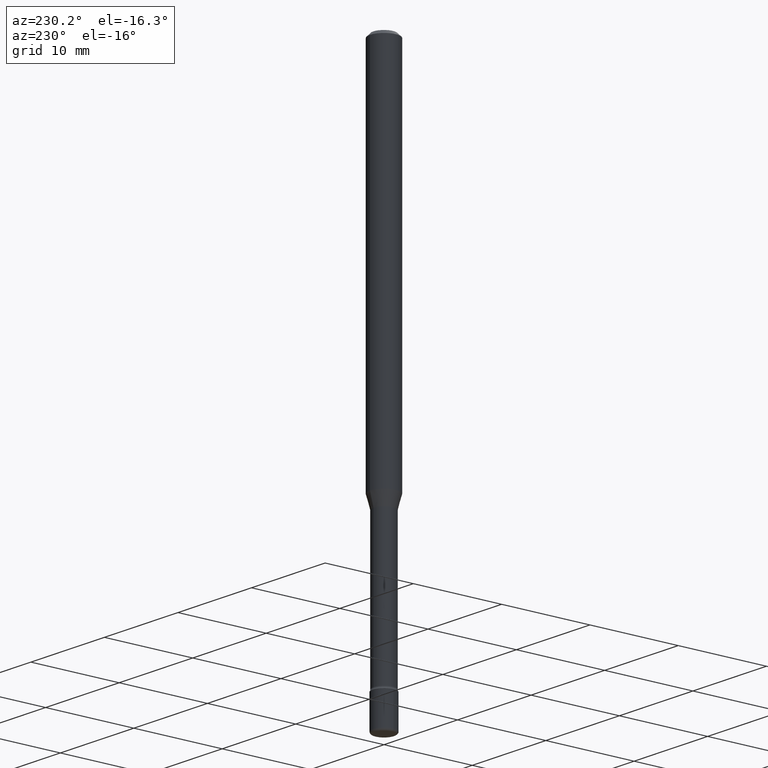
[diagram: clean part render]
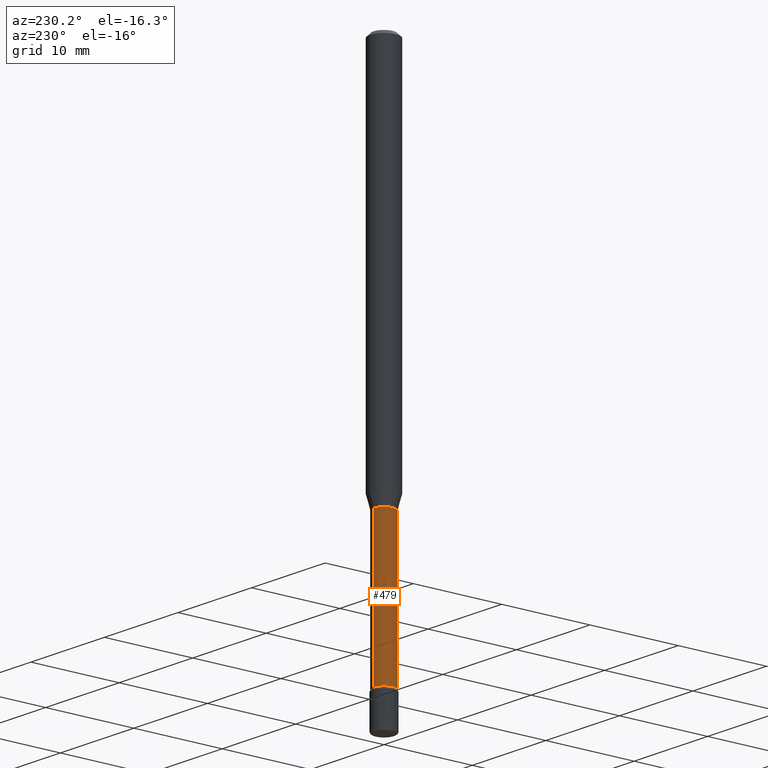
[diagram: same view with one face highlighted and labeled with its STEP entity id]
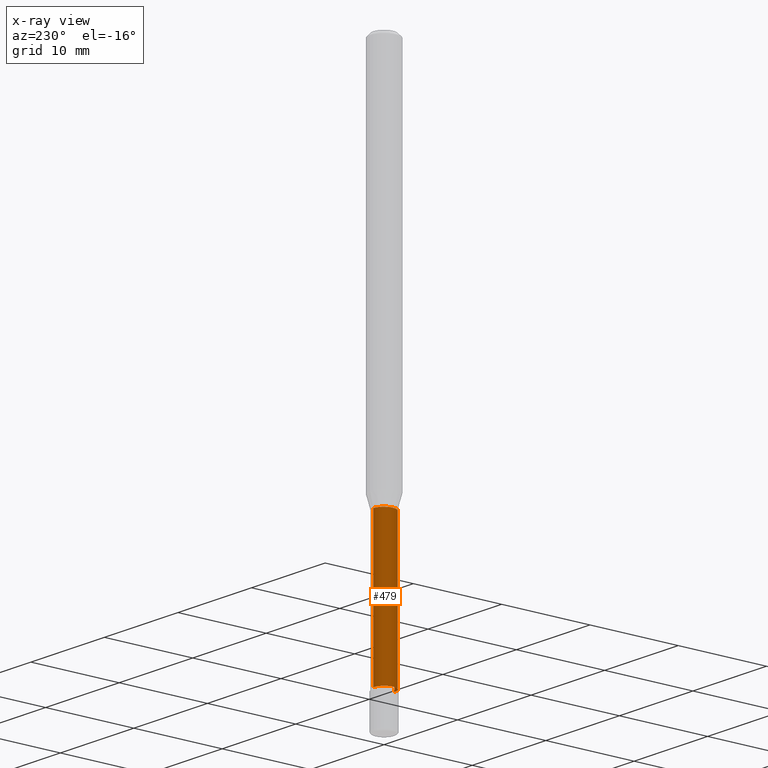
[diagram: x-ray of the same camera — body ghosted, the highlighted face saturated]
A machine part, auxiliary view. The second image highlights one B-rep face of the part: STEP entity #479.
The next image is the same camera in x-ray: the body ghosted, the highlighted face saturated — about 0% of this face is hidden behind the body in this view.
In plain terms, the highlighted cylindrical surface (edge-blend (fillet) strip) has radius 1.1938 mm, axis along (-0, 0, 1).
Its self-contained STEP definition (entity closure, byte-faithful):
#5 = AXIS2_PLACEMENT_3D ( 'NONE', #330, #46, #301 ) ;
#27 = CARTESIAN_POINT ( 'NONE',  ( -3.281992458512128914E-16, -0.04700000000000593980, -1.701974787463810701 ) ) ;
#31 = DIRECTION ( 'NONE',  ( -2.445484649858063983E-29, 3.491458649801747802E-15, 1.000000000000000000 ) ) ;
#35 = EDGE_CURVE ( 'NONE', #542, #219, #370, .T. ) ;
#46 = DIRECTION ( 'NONE',  ( -2.445484649858063703E-29, 3.491458649801748196E-15, 1.000000000000000000 ) ) ;
#67 = CARTESIAN_POINT ( 'NONE',  ( 4.162153217188190492E-29, -5.942374593435014667E-15, -1.701974787463810923 ) ) ;
#68 = CYLINDRICAL_SURFACE ( 'NONE', #5, 0.04700000000000000705 ) ;
#101 = EDGE_CURVE ( 'NONE', #219, #104, #326, .T. ) ;
#104 = VERTEX_POINT ( 'NONE', #27 ) ;
#130 = CARTESIAN_POINT ( 'NONE',  ( -3.281992458511972621E-16, -0.04700000000000817413, -2.340999999999999304 ) ) ;
#146 = VECTOR ( 'NONE', #486, 39.37007874015748143 ) ;
#196 = AXIS2_PLACEMENT_3D ( 'NONE', #377, #335, #455 ) ;
#219 = VERTEX_POINT ( 'NONE', #394 ) ;
#233 = VECTOR ( 'NONE', #31, 39.37007874015748143 ) ;
#301 = DIRECTION ( 'NONE',  ( -6.982962677686265922E-15, -1.000000000000000000, 3.491458649801746619E-15 ) ) ;
#316 = CARTESIAN_POINT ( 'NONE',  ( -3.281992458512545531E-16, -0.04700000000000000705, 6.421719554319281504E-16 ) ) ;
#321 = EDGE_CURVE ( 'NONE', #526, #104, #534, .T. ) ;
#326 = CIRCLE ( 'NONE', #560, 0.04699999999999999317 ) ;
#330 = CARTESIAN_POINT ( 'NONE',  ( -1.169113584055446105E-44, 1.669184350826100908E-30, 4.780733988912460139E-16 ) ) ;
#331 = CARTESIAN_POINT ( 'NONE',  ( 3.339550858072470388E-16, 0.04700000000000000705, 3.139748423505638775E-16 ) ) ;
#335 = DIRECTION ( 'NONE',  ( -2.445484649858063703E-29, 3.491458649801748196E-15, 1.000000000000000000 ) ) ;
#344 = EDGE_CURVE ( 'NONE', #542, #526, #498, .T. ) ;
#370 = LINE ( 'NONE', #331, #233 ) ;
#377 = CARTESIAN_POINT ( 'NONE',  ( 5.724879565317726717E-29, -8.173504699185892323E-15, -2.340999999999999748 ) ) ;
#385 = ORIENTED_EDGE ( 'NONE', *, *, #344, .T. ) ;
#389 = ORIENTED_EDGE ( 'NONE', *, *, #321, .T. ) ;
#394 = CARTESIAN_POINT ( 'NONE',  ( 3.339550858073043792E-16, 0.04699999999999405348, -1.701974787463811145 ) ) ;
#412 = DIRECTION ( 'NONE',  ( -2.445484649858063703E-29, 3.491458649801748196E-15, 1.000000000000000000 ) ) ;
#424 = ORIENTED_EDGE ( 'NONE', *, *, #101, .F. ) ;
#453 = FACE_OUTER_BOUND ( 'NONE', #490, .T. ) ;
#455 = DIRECTION ( 'NONE',  ( -6.982962677686265922E-15, -1.000000000000000000, 5.812442539711197800E-15 ) ) ;
#466 = CARTESIAN_POINT ( 'NONE',  ( 3.446132268437060393E-16, 0.04699999999999183303, -2.341000000000000192 ) ) ;
#470 = ORIENTED_EDGE ( 'NONE', *, *, #35, .F. ) ;
#479 = ADVANCED_FACE ( 'NONE', ( #453 ), #68, .T. ) ;
#486 = DIRECTION ( 'NONE',  ( -2.445484649858063983E-29, 3.491458649801747802E-15, 1.000000000000000000 ) ) ;
#490 = EDGE_LOOP ( 'NONE', ( #470, #385, #389, #424 ) ) ;
#498 = CIRCLE ( 'NONE', #196, 0.04700000000000000705 ) ;
#526 = VERTEX_POINT ( 'NONE', #130 ) ;
#534 = LINE ( 'NONE', #316, #146 ) ;
#542 = VERTEX_POINT ( 'NONE', #466 ) ;
#550 = DIRECTION ( 'NONE',  ( -6.982962677686266711E-15, -1.000000000000000000, 5.812442539711199378E-15 ) ) ;
#560 = AXIS2_PLACEMENT_3D ( 'NONE', #67, #412, #550 ) ;